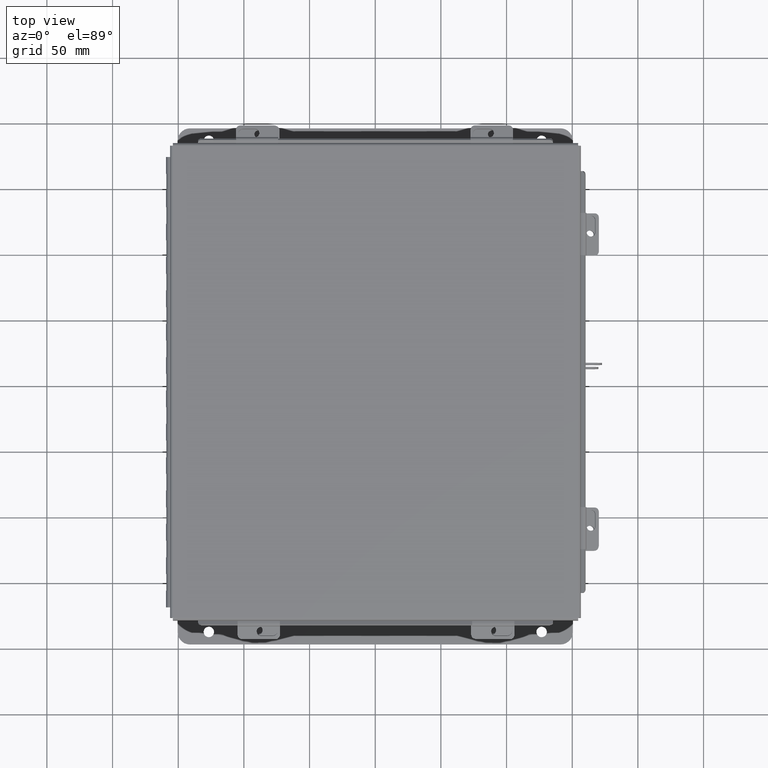
[diagram: clean part render]
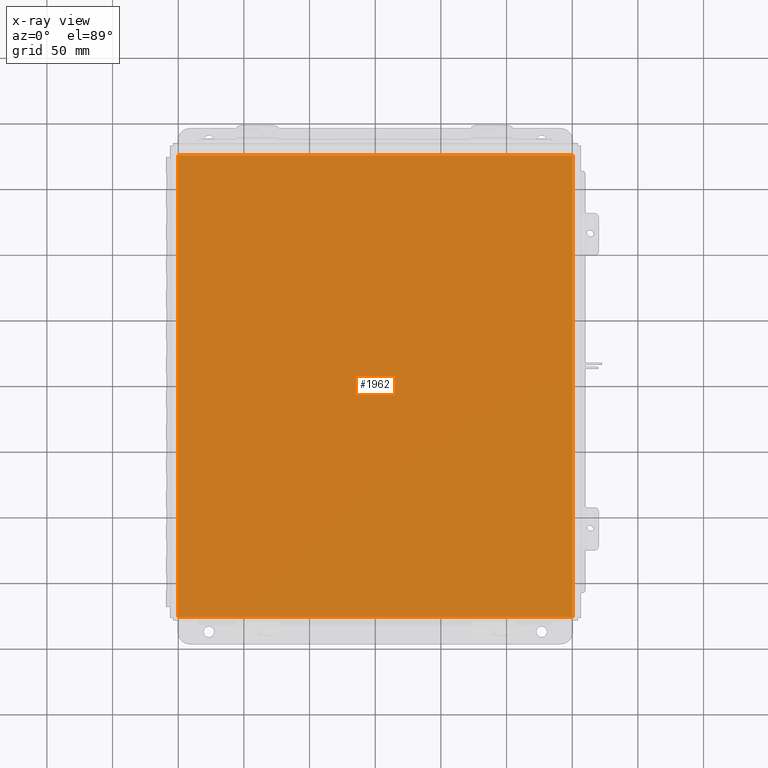
[diagram: x-ray — body ghosted, one internal face saturated and labeled with its STEP entity id]
A machine part, top view, then the same camera in x-ray: the body is ghosted and one INTERNAL B-rep face — a face not visible from any outside direction — is saturated and labeled: STEP entity #1962.
In plain terms, the highlighted planar face has unit normal (0, 0, -1).
Its self-contained STEP definition (entity closure, byte-faithful):
#643 = CARTESIAN_POINT ( 'NONE',  ( -6.000000000000000900, 6.925299999999998200, 0.0000000000000000000 ) ) ;
#1029 = VERTEX_POINT ( 'NONE', #3863 ) ;
#1962 = ADVANCED_FACE ( 'NONE', ( #10565 ), #7493, .F. ) ;
#2050 = ORIENTED_EDGE ( 'NONE', *, *, #6558, .F. ) ;
#2174 = DIRECTION ( 'NONE',  ( 0.0000000000000000000, 0.0000000000000000000, -1.000000000000000000 ) ) ;
#3039 = DIRECTION ( 'NONE',  ( 1.000000000000000000, 0.0000000000000000000, 0.0000000000000000000 ) ) ;
#3719 = CARTESIAN_POINT ( 'NONE',  ( 5.912300000000000100, 6.925299999999996500, 4.268512490100411300E-017 ) ) ;
#3818 = EDGE_LOOP ( 'NONE', ( #2050, #7442, #3906, #3958 ) ) ;
#3863 = CARTESIAN_POINT ( 'NONE',  ( -5.912300000000000100, 6.925299999999998200, 4.268512490100411300E-017 ) ) ;
#3906 = ORIENTED_EDGE ( 'NONE', *, *, #17888, .F. ) ;
#3958 = ORIENTED_EDGE ( 'NONE', *, *, #7700, .T. ) ;
#4081 = VECTOR ( 'NONE', #14137, 39.37007874015748100 ) ;
#4573 = AXIS2_PLACEMENT_3D ( 'NONE', #8800, #2174, #5780 ) ;
#4813 = CARTESIAN_POINT ( 'NONE',  ( 5.912300000000000100, 6.925299999999998200, 4.268512490100411300E-017 ) ) ;
#5444 = CARTESIAN_POINT ( 'NONE',  ( -5.912300000000000100, -6.925300000000000900, 4.268512490100411300E-017 ) ) ;
#5780 = DIRECTION ( 'NONE',  ( -1.000000000000000000, 0.0000000000000000000, -0.0000000000000000000 ) ) ;
#5917 = VERTEX_POINT ( 'NONE', #17115 ) ;
#6558 = EDGE_CURVE ( 'NONE', #13271, #16814, #14576, .T. ) ;
#7442 = ORIENTED_EDGE ( 'NONE', *, *, #17276, .T. ) ;
#7493 = PLANE ( 'NONE',  #4573 ) ;
#7700 = EDGE_CURVE ( 'NONE', #5917, #16814, #11949, .T. ) ;
#7712 = VECTOR ( 'NONE', #3039, 39.37007874015748100 ) ;
#8800 = CARTESIAN_POINT ( 'NONE',  ( 0.0000000000000000000, 0.0000000000000000000, 0.0000000000000000000 ) ) ;
#10206 = VECTOR ( 'NONE', #11994, 39.37007874015748100 ) ;
#10218 = CARTESIAN_POINT ( 'NONE',  ( -6.000000000000000900, -6.925300000000000900, 0.0000000000000000000 ) ) ;
#10565 = FACE_OUTER_BOUND ( 'NONE', #3818, .T. ) ;
#11301 = LINE ( 'NONE', #5444, #4081 ) ;
#11949 = LINE ( 'NONE', #10218, #7712 ) ;
#11994 = DIRECTION ( 'NONE',  ( -0.0000000000000000000, -1.000000000000000000, -0.0000000000000000000 ) ) ;
#13271 = VERTEX_POINT ( 'NONE', #3719 ) ;
#13346 = VECTOR ( 'NONE', #18005, 39.37007874015748100 ) ;
#13987 = CARTESIAN_POINT ( 'NONE',  ( 5.912300000000000100, -6.925300000000000900, 4.268512490100411300E-017 ) ) ;
#14137 = DIRECTION ( 'NONE',  ( -0.0000000000000000000, 1.000000000000000000, -0.0000000000000000000 ) ) ;
#14576 = LINE ( 'NONE', #4813, #10206 ) ;
#16814 = VERTEX_POINT ( 'NONE', #13987 ) ;
#17115 = CARTESIAN_POINT ( 'NONE',  ( -5.912300000000000100, -6.925299999999999100, 4.268512490100411300E-017 ) ) ;
#17276 = EDGE_CURVE ( 'NONE', #13271, #1029, #17313, .T. ) ;
#17313 = LINE ( 'NONE', #643, #13346 ) ;
#17888 = EDGE_CURVE ( 'NONE', #5917, #1029, #11301, .T. ) ;
#18005 = DIRECTION ( 'NONE',  ( -1.000000000000000000, -0.0000000000000000000, -0.0000000000000000000 ) ) ;